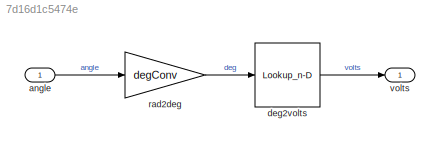
MODEL slx_7d16d1c5474e
KIND model
CONFIG AbsTol = auto
CONFIG EnableMultiTasking = on
CONFIG FixedStep = auto
CONFIG MaxStep = auto
CONFIG MinStep = auto
CONFIG PreLoadFcn = t = linspace(0,10,101)';\nu = linspace(0,pi/2,101)';\ndegConv = 180/pi;
CONFIG RelTol = 1e-3
CONFIG SampleTimeConstraint = Unconstrained
CONFIG Solver = FixedStepDiscrete
CONFIG SolverName = FixedStepDiscrete
CONFIG StartTime = 0.0
CONFIG StopTime = 10.0
BLOCK [Inport] angle
  IconDisplay = Port number
BLOCK [Lookup_n-D] deg2volts
  BreakpointsForDimension1 = [0 90]
  NumberOfTableDimensions = 1
  Ports = [1, 1]
  RndMeth = Simplest
  Table = [0.5 4.5]
BLOCK [Gain] rad2deg
  Gain = degConv
BLOCK [Outport] volts
  IconDisplay = Port number
LINE angle:1 -> rad2deg:1
LINE deg2volts:1 -> volts:1
LINE rad2deg:1 -> deg2volts:1
